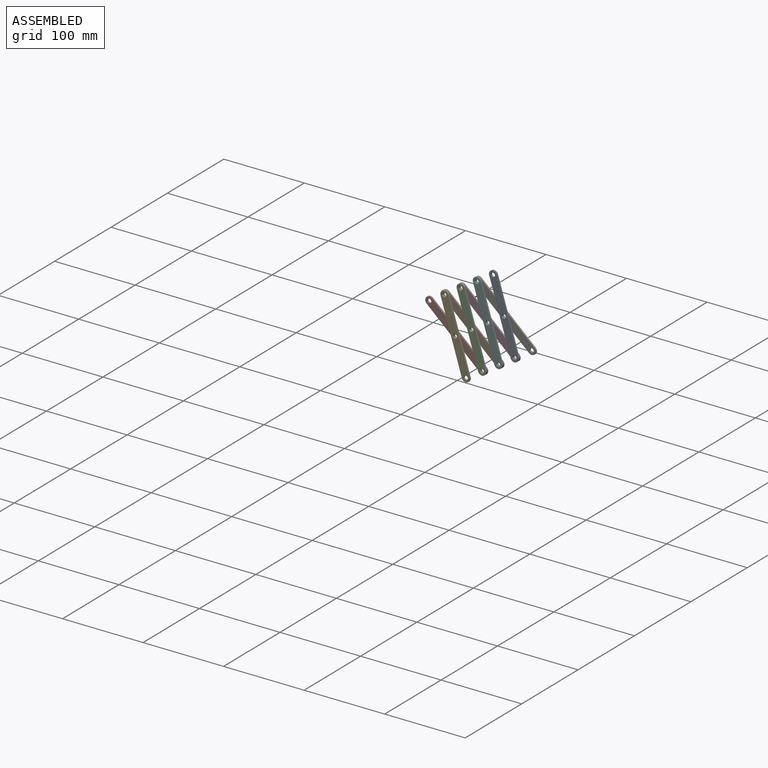
[diagram: assembled view]
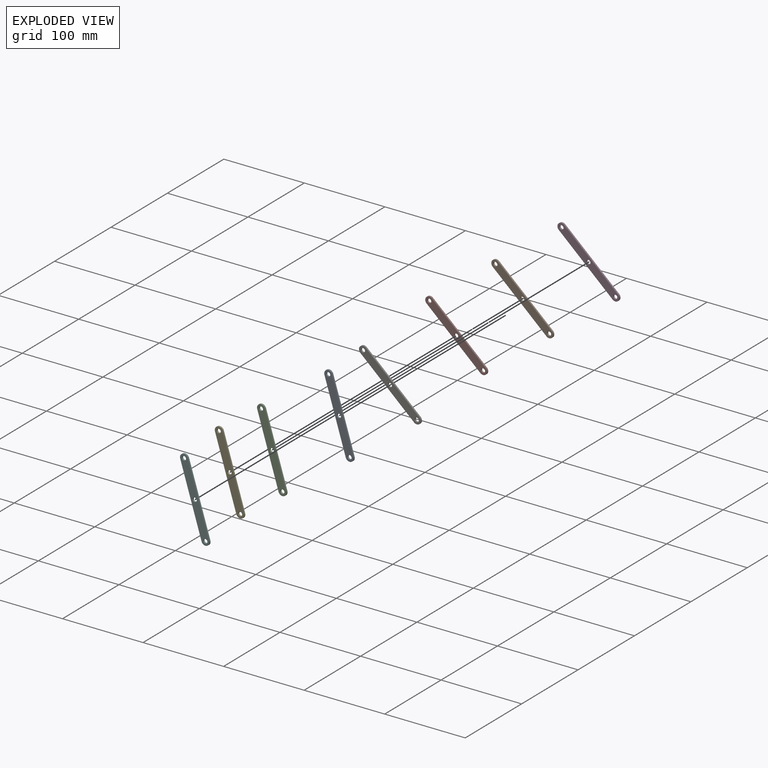
[diagram: exploded view]
GUIDED TOUR — MATED ASSEMBLY (Onshape document e46e62579672f2caefa31578, AutoMate assembly e46e62579672f2caefa31578_6e8f87098fdb6613fdceb971_dd7d72955696d17101075353_default)

This assembly has 8 components, labeled P0..P7 below (a component is one placed occurrence of a part; the same part can appear more than once), held together by 10 mates. A mate is a constraint between two components; its type names the relative motion it leaves free:
  REVOLUTE — leaves rotation about the listed axis free (a hinge).
Axis/direction vectors are unit vectors and 'through' points are millimeter coordinates, both in the assembly's world frame.

MATES
  1. REVOLUTE "Revolute 3": P7 <-> P2, axis (0.000, -1.000, 0.000) through (33.42, -2.00, -30.13) mm
  2. REVOLUTE "Revolute 5": P3 <-> P2, axis (0.000, -1.000, 0.000) through (6.88, -2.00, 55.86) mm
  3. REVOLUTE "Revolute 1": P4 <-> P7, axis (0.000, 1.000, 0.000) through (0.00, -2.00, 0.00) mm
  4. REVOLUTE "Revolute 4": P1 <-> P2, axis (0.000, -1.000, 0.000) through (20.15, -2.00, 12.87) mm
  5. REVOLUTE "Revolute 8": P6 <-> P5, axis (0.000, -1.000, 0.000) through (27.02, -2.00, 68.73) mm
  6. REVOLUTE "Revolute 2": P1 <-> P4, axis (0.000, -1.000, 0.000) through (-13.27, -2.00, 43.00) mm
  7. REVOLUTE "Revolute 7": P5 <-> P3, axis (0.000, 1.000, 0.000) through (40.30, -2.00, 25.73) mm
  8. REVOLUTE "Revolute 10": P0 <-> P6, axis (0.000, 1.000, 0.000) through (60.45, -2.00, 38.60) mm
  9. REVOLUTE "Revolute 6": P5 <-> P1, axis (0.000, 1.000, 0.000) through (53.57, -2.00, -17.27) mm
  10. REVOLUTE "Revolute 9": P0 <-> P3, axis (0.000, 1.000, 0.000) through (73.72, -2.00, -4.40) mm

ASSEMBLY ORDER
  1. P7 — the base component [order verified]
  2. P1 [order verified]
  3. P3 [order verified]
  4. P6 [order verified]
  5. P0 [order verified]
  6. P2 [order verified]
  7. P4 [order verified]
  8. P5 [order verified]
Order-tag legend:
  [order verified] — this step's position reverses a verified removal order: the component was checked to insert without passing through the ones already placed.

Of the 8 components, 8 carry the full construction recipe — the FeatureScript program that regenerates the part's solid from scratch; the rest are supplied as boundary geometry only.
Each toured component is shown spotlighted twice — in the assembled view, then in the exploded view, where a leader line traces a displaced component back to its assembled socket (saturated green if recipe-attached, orange if geometry-only; every other component desaturated gray) — followed by its recipe or geometry summary and the mates that hold it.
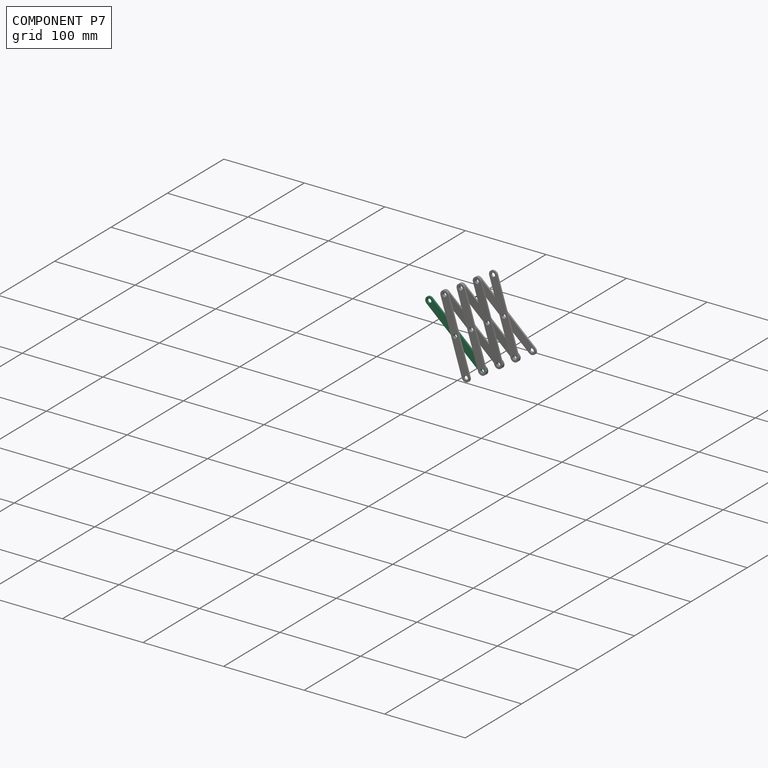
[diagram: component P7 — assembled]
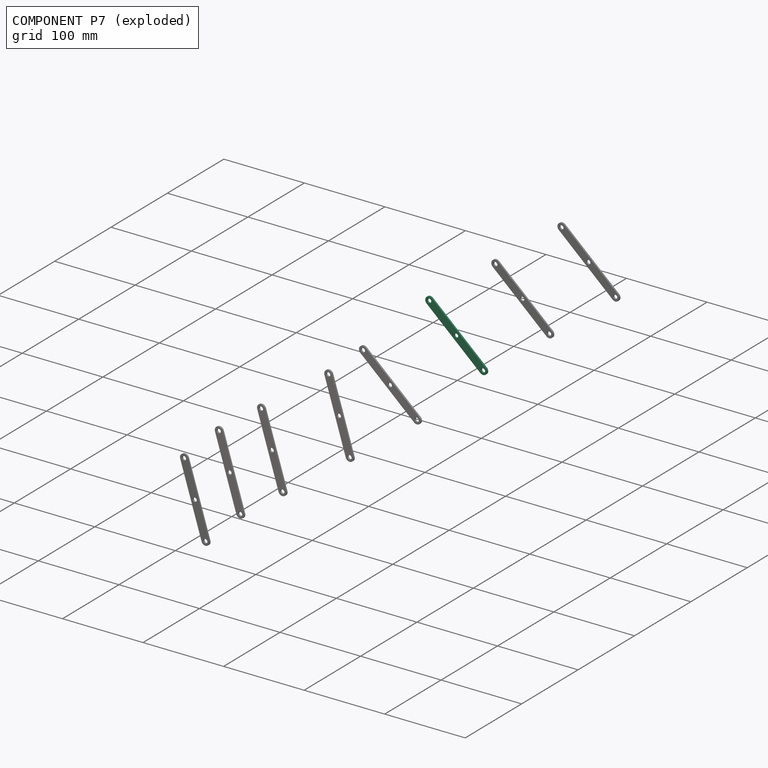
[diagram: component P7 — exploded]
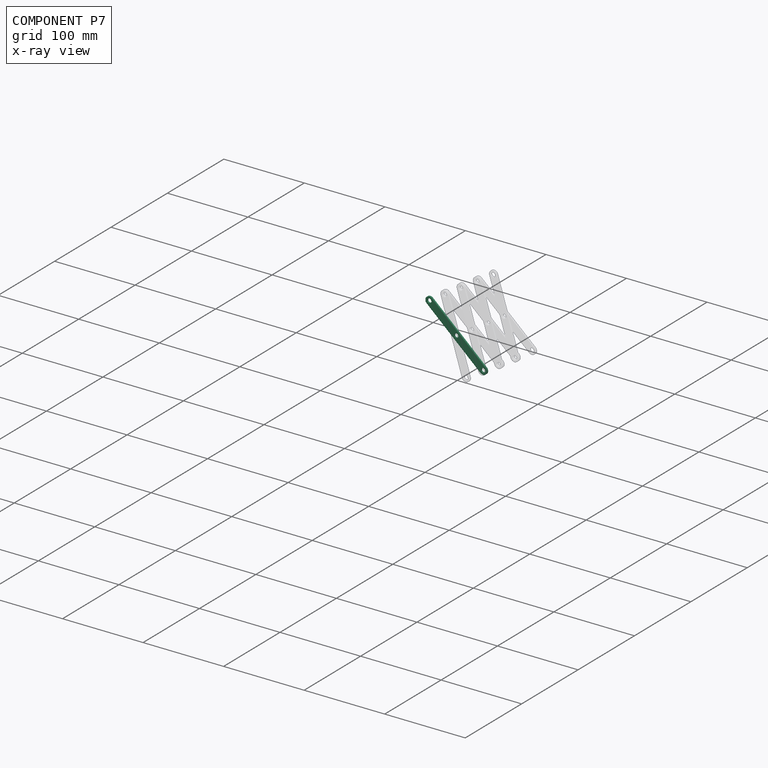
[diagram: component P7 — x-ray view]
COMPONENT P7 — same part as P0 (CADFS 00232060); its construction recipe is shown at P0.
Held by: REVOLUTE mate "Revolute 3" to P2; REVOLUTE mate "Revolute 1" to P4.
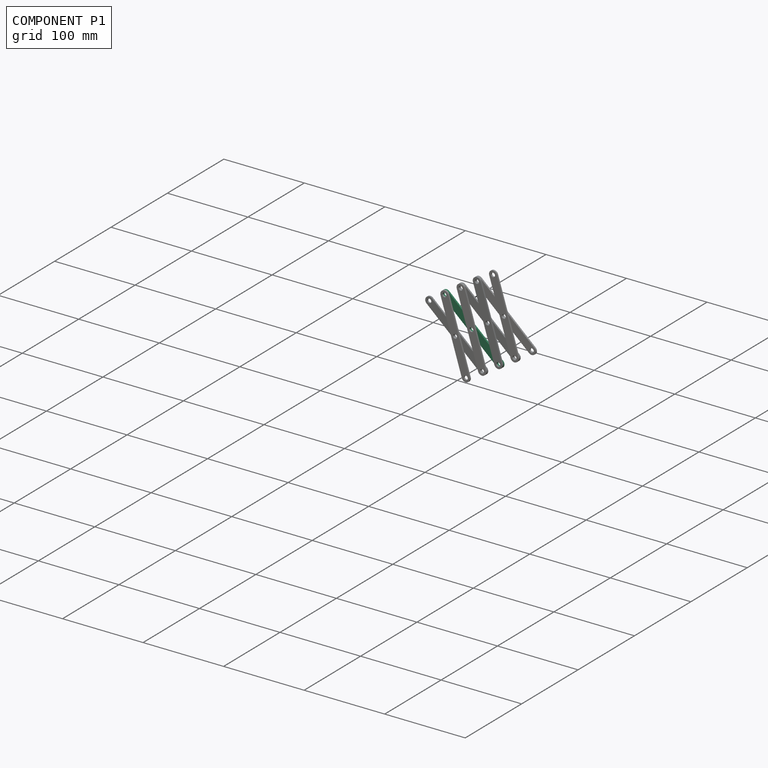
[diagram: component P1 — assembled]
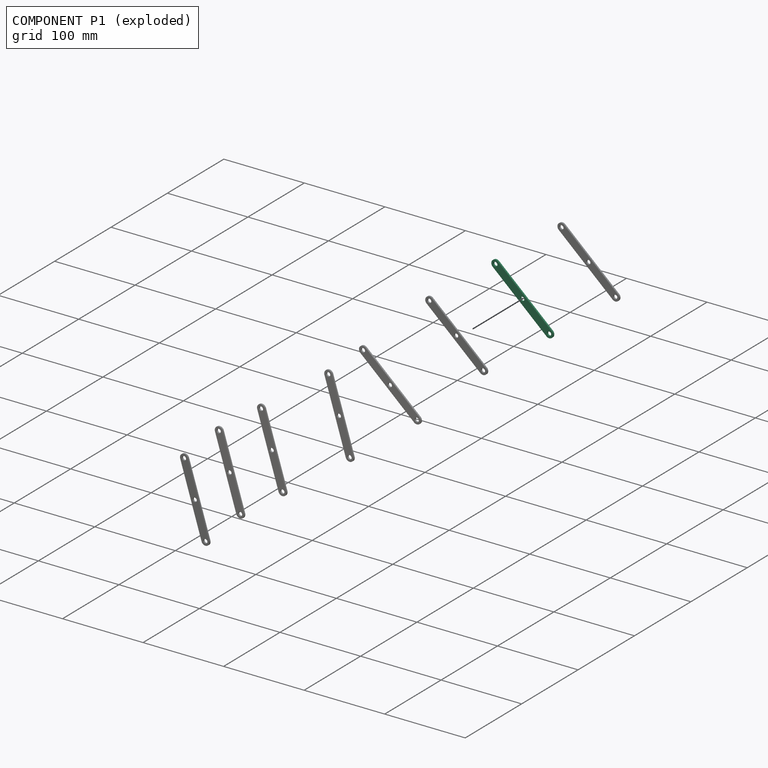
[diagram: component P1 — exploded]
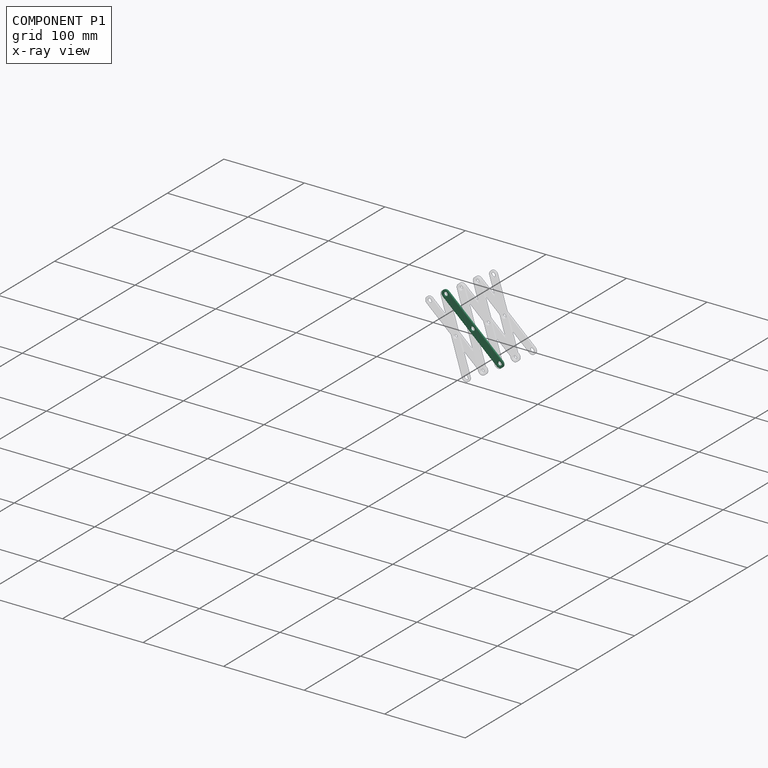
[diagram: component P1 — x-ray view]
COMPONENT P1 — same part as P0 (CADFS 00232060); its construction recipe is shown at P0.
Held by: REVOLUTE mate "Revolute 4" to P2; REVOLUTE mate "Revolute 2" to P4; REVOLUTE mate "Revolute 6" to P5.
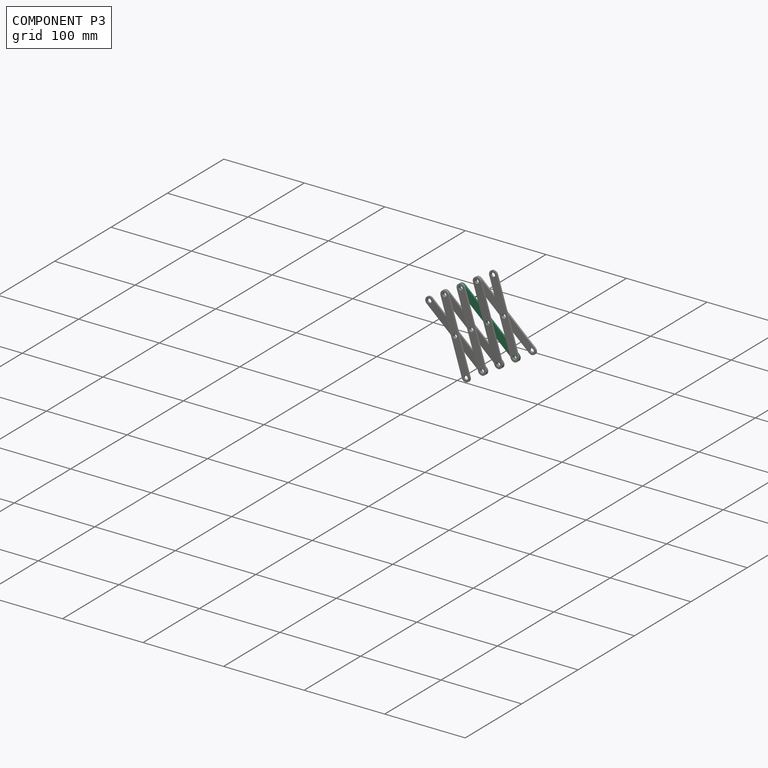
[diagram: component P3 — assembled]
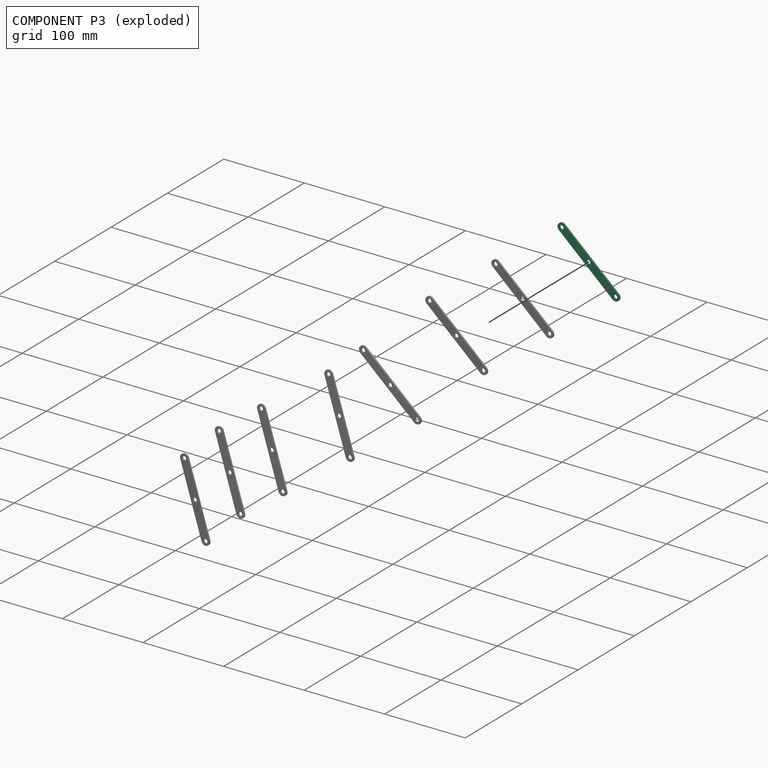
[diagram: component P3 — exploded]
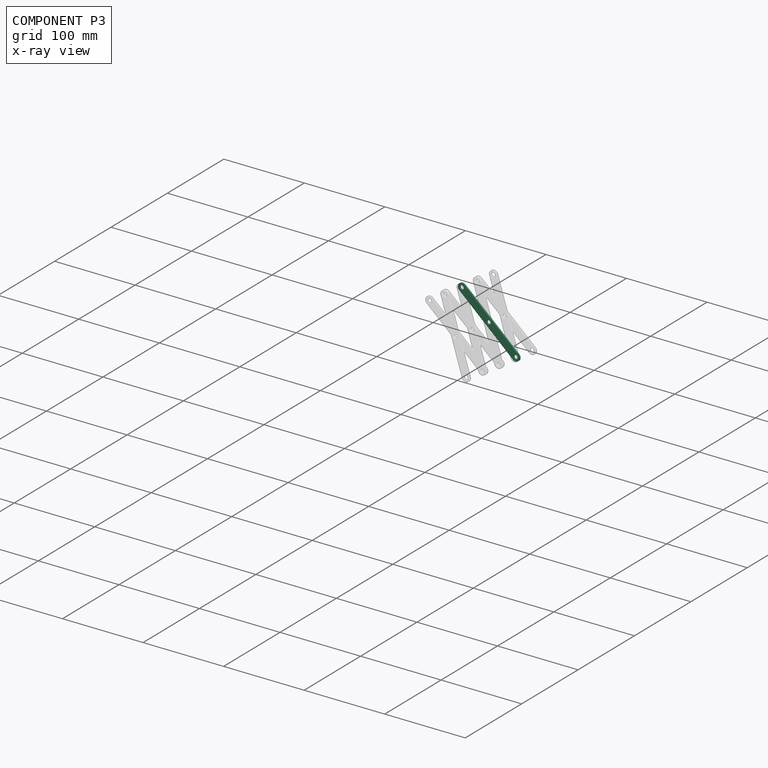
[diagram: component P3 — x-ray view]
COMPONENT P3 — same part as P0 (CADFS 00232060); its construction recipe is shown at P0.
Held by: REVOLUTE mate "Revolute 5" to P2; REVOLUTE mate "Revolute 7" to P5; REVOLUTE mate "Revolute 9" to P0.
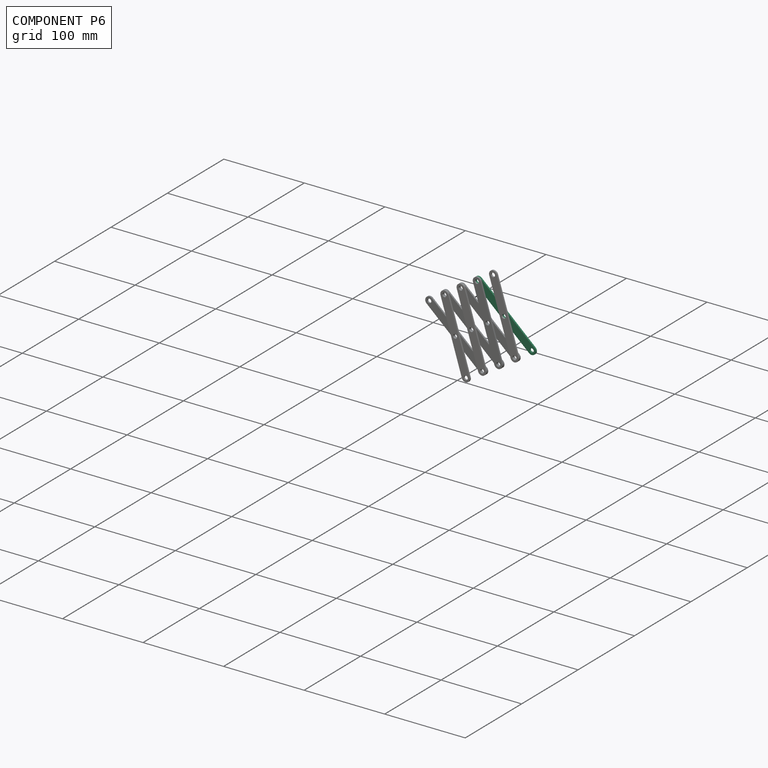
[diagram: component P6 — assembled]
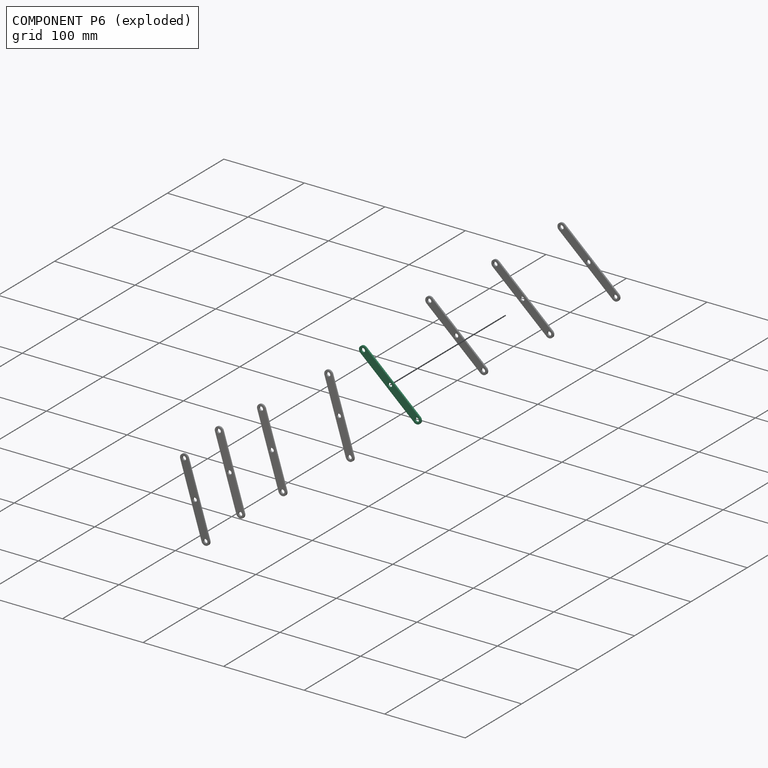
[diagram: component P6 — exploded]
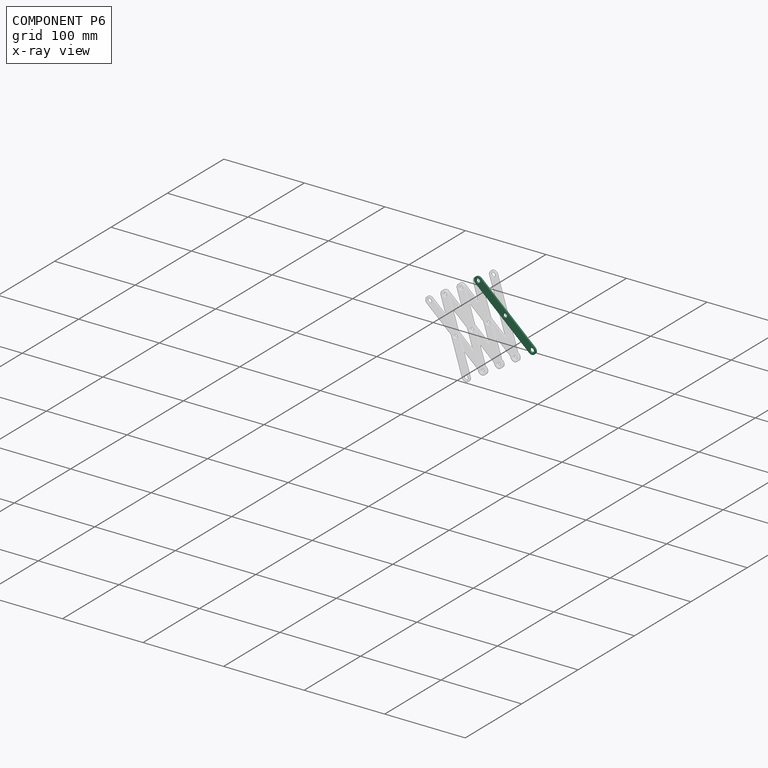
[diagram: component P6 — x-ray view]
COMPONENT P6 — same part as P0 (CADFS 00232060); its construction recipe is shown at P0.
Held by: REVOLUTE mate "Revolute 8" to P5; REVOLUTE mate "Revolute 10" to P0.
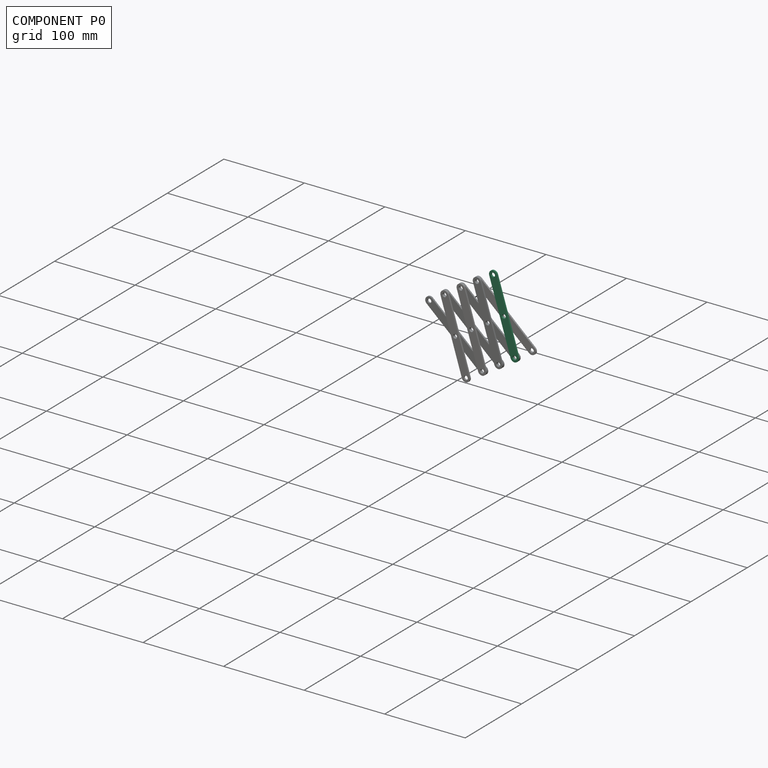
[diagram: component P0 — assembled]
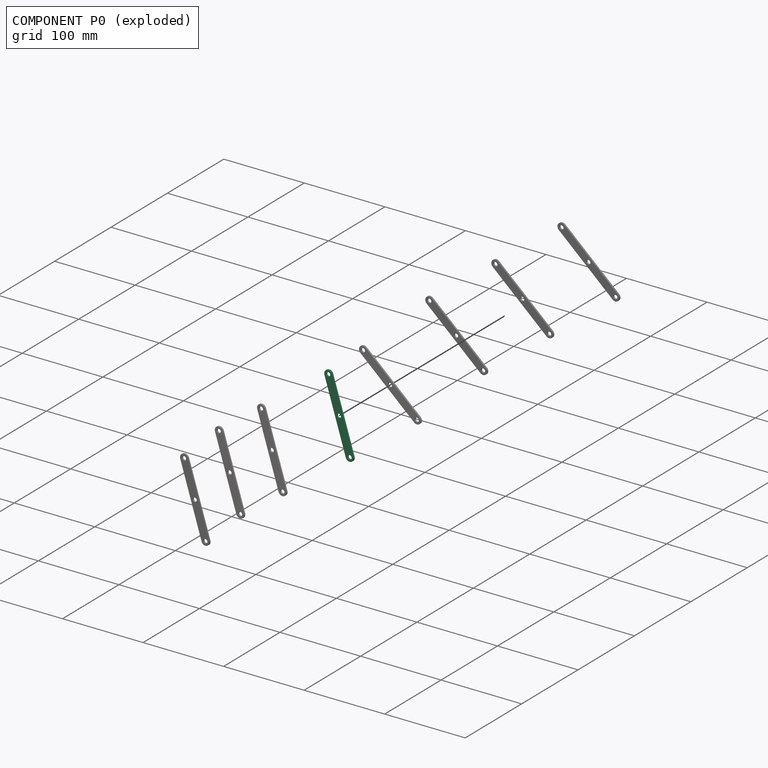
[diagram: component P0 — exploded]
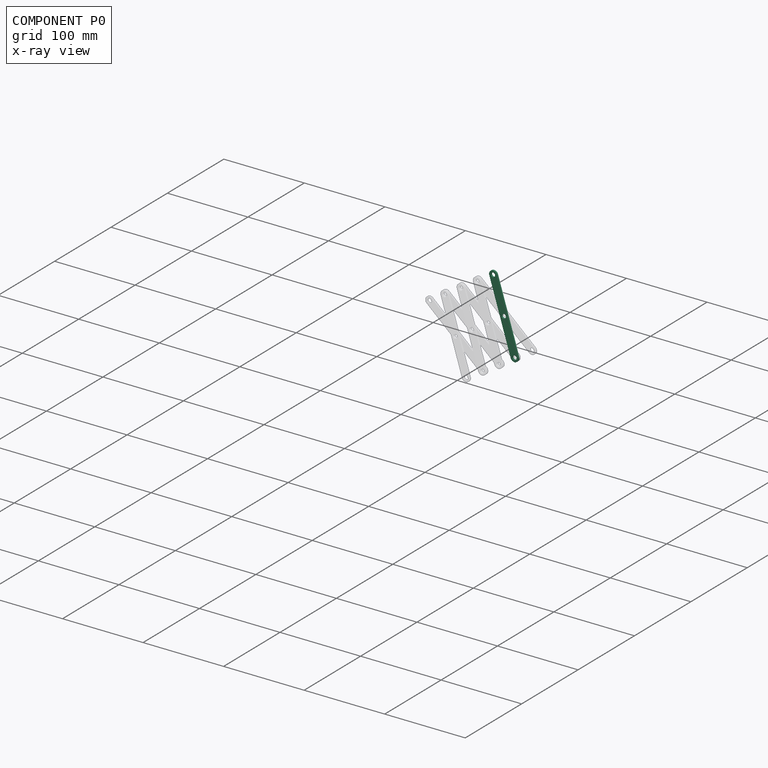
[diagram: component P0 — x-ray view]
COMPONENT P0 — recipe-attached (CADFS 00232060, mesh-verified: the recipe's output STEP matches this component's geometry to below the mesh-comparison resolution (tessellation chordal tolerance ~0.151 mm)).
Held by: REVOLUTE mate "Revolute 10" to P6; REVOLUTE mate "Revolute 9" to P3.
Construction recipe (FeatureScript — the CAD program that rebuilds this solid; sketch coordinates are in the units given by the * unit suffixes, e.g. mm):

FeatureScript 1511;
import(path : "onshape/std/geometry.fs", version : "1511.0");
import(path : "onshape/std/common.fs", version : "1511.0");
const mm = millimeter;
const VERTEX = EntityType.VERTEX;
const EDGE = EntityType.EDGE;
const FACE = EntityType.FACE;
const BODY = EntityType.BODY;
function v(x, y){return vector(x, y);}
function OD(order){return orderDisambiguation(order);}
function OSD(set){return originalSetDisambiguation(set);}
function TD(topology){return topologyDisambiguation(topology);}
function TDD(query){return trueDependencyDisambiguation(query);}
function sQuery(a, b, c) {return sketchEntityQuery(a, b, c);}

annotation { "Feature Type Name" : "Feature", "Feature Type Description" : "" }
export const myFeature = defineFeature(function(context is Context, id is Id, definition is map)
    precondition{}
    {
        {
            var Q0;
            Q0=qCreatedBy(makeId("Front.planeOp"),FACE);
            var sketch = newSketch(context, id + "F0", { "sketchPlane" : qUnion([Q0])});
            skLineSegment(sketch, "E0.bottom", {"start": v(-50, 5) * mm, "end": v(50, 5) * mm});
            skLineSegment(sketch, "E0.top", {"start": v(-50, -5) * mm, "end": v(50, -5) * mm});
            skLineSegment(sketch, "E0.left", {"start": v(-50, 5) * mm, "end": v(-50, -5) * mm});
            skLineSegment(sketch, "E0.right", {"start": v(50, 5) * mm, "end": v(50, -5) * mm});
            skCircle(sketch, "E1", {"center": v(0, 0) * mm, "radius": 2.5 * mm});
            skCircle(sketch, "E2", {"center": v(45, 0) * mm, "radius": 2.5 * mm});
            skPoint(sketch, "E2.centerSnap0", {"position": v(50, 0) * mm});
            skCircle(sketch, "E3", {"center": v(-45, 0) * mm, "radius": 2.5 * mm});
            skPoint(sketch, "E3.centerSnap0", {"position": v(-50, 0) * mm});
            skSolve(sketch);
        }
        {
            var Q0;
            Q0=makeQuery(id+"F0.imprint","IMPRINT",FACE,{"disambiguationData":[TD([[makeQuery(id+"F0.imprint","IMPRINT",EDGE,{"derivedFrom":sQuery(id+"F0.wireOp",EDGE,"E0.bottom")}),-1.0]])]});
            extrude(context, id + "F1", {"entities" : qUnion([Q0]), "depth" : 2 * mm});
        }
        {
            var Q0;
            Q0=makeQuery(id+"F1.opExtrude","SWEPT_EDGE",EDGE,{"disambiguationData":[OSD([sQuery(id+"F0.wireOp",EDGE,"E0.bottom"),sQuery(id+"F0.wireOp",EDGE,"E0.left")])]});
            var Q1;
            Q1=makeQuery(id+"F1.opExtrude","SWEPT_EDGE",EDGE,{"disambiguationData":[OSD([sQuery(id+"F0.wireOp",EDGE,"E0.top"),sQuery(id+"F0.wireOp",EDGE,"E0.left")])]});
            var Q2;
            Q2=makeQuery(id+"F1.opExtrude","SWEPT_EDGE",EDGE,{"disambiguationData":[OSD([sQuery(id+"F0.wireOp",EDGE,"E0.top"),sQuery(id+"F0.wireOp",EDGE,"E0.right")])]});
            var Q3;
            Q3=makeQuery(id+"F1.opExtrude","SWEPT_EDGE",EDGE,{"disambiguationData":[OSD([sQuery(id+"F0.wireOp",EDGE,"E0.bottom"),sQuery(id+"F0.wireOp",EDGE,"E0.right")])]});
            fillet(context, id + "F2", {"entities" : qUnion([Q0, Q1, Q2, Q3]), "radius" : 5 * mm, "tangentPropagation" : true, "allowEdgeOverflow" : false});
        }
        {
            var Q0;
            Q0=makeQuery(id+"F1.opExtrude","SWEPT_BODY",BODY,{"disambiguationData":[OSD([sQuery(id+"F0.wireOp",EDGE,"E0.bottom"),sQuery(id+"F0.wireOp",EDGE,"E0.top"),sQuery(id+"F0.wireOp",EDGE,"E0.left"),sQuery(id+"F0.wireOp",EDGE,"E0.right"),sQuery(id+"F0.wireOp",EDGE,"E1"),sQuery(id+"F0.wireOp",EDGE,"E2"),sQuery(id+"F0.wireOp",EDGE,"E3")])]});
            transform(context, id + "F3", {"entities" : qUnion([Q0]), "transformType" : TransformType.TRANSLATION_3D, "dx" : 0 * mm, "dy" : -2 * mm, "dz" : 0 * mm, "makeCopy" : true});
        }
        {
            var Q0;
            Q0=makeQuery(id+"F3.opPattern","COPY",BODY,{"derivedFrom":makeQuery(id+"F1.opExtrude","SWEPT_BODY",BODY,{"disambiguationData":[OSD([sQuery(id+"F0.wireOp",EDGE,"E0.bottom"),sQuery(id+"F0.wireOp",EDGE,"E0.top"),sQuery(id+"F0.wireOp",EDGE,"E0.left"),sQuery(id+"F0.wireOp",EDGE,"E0.right"),sQuery(id+"F0.wireOp",EDGE,"E1"),sQuery(id+"F0.wireOp",EDGE,"E2"),sQuery(id+"F0.wireOp",EDGE,"E3")])]}),"instanceName":"1"});
            deleteBodies(context, id + "F4", {"entities" : qUnion([Q0])});
        }
    });
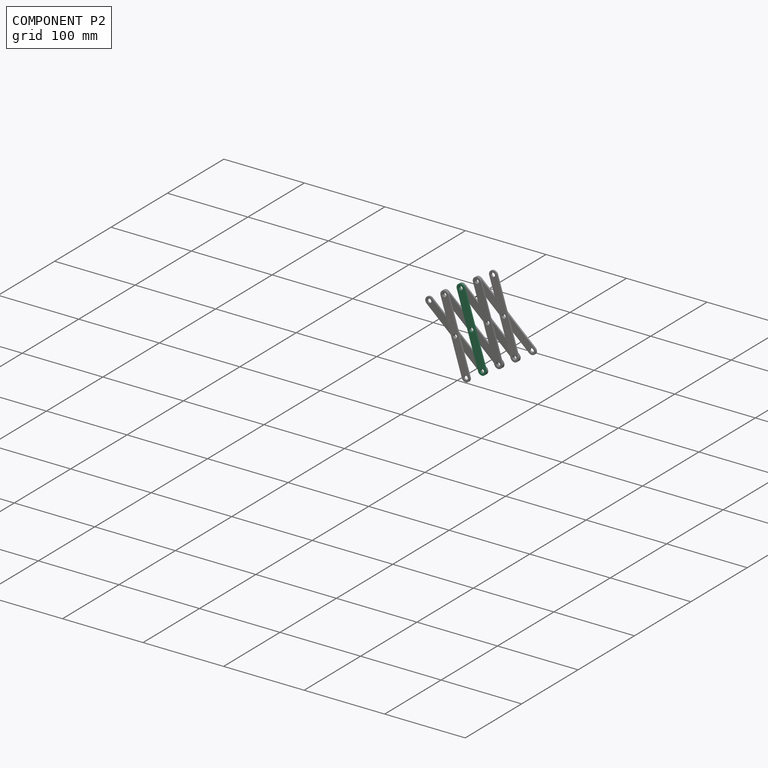
[diagram: component P2 — assembled]
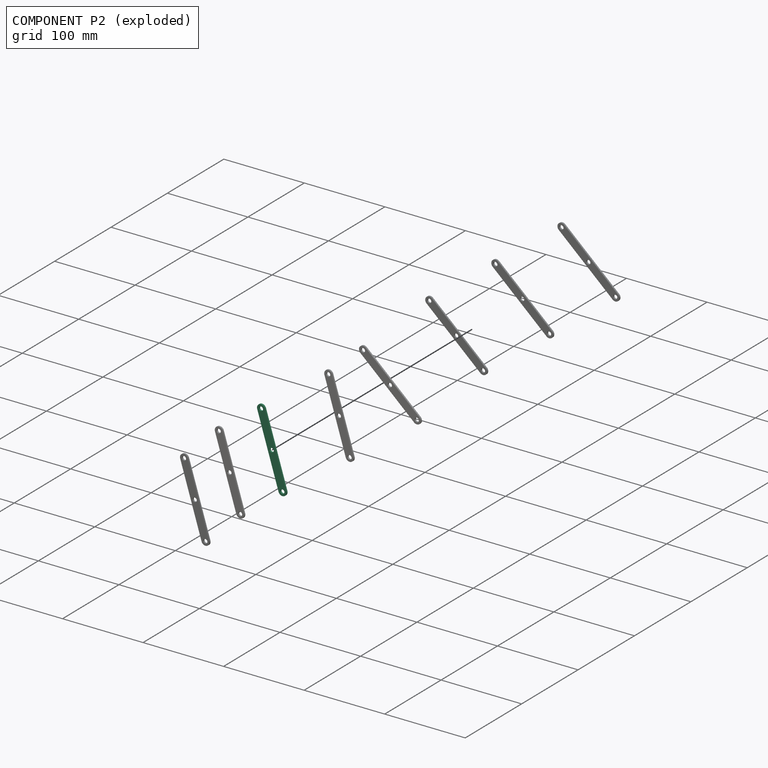
[diagram: component P2 — exploded]
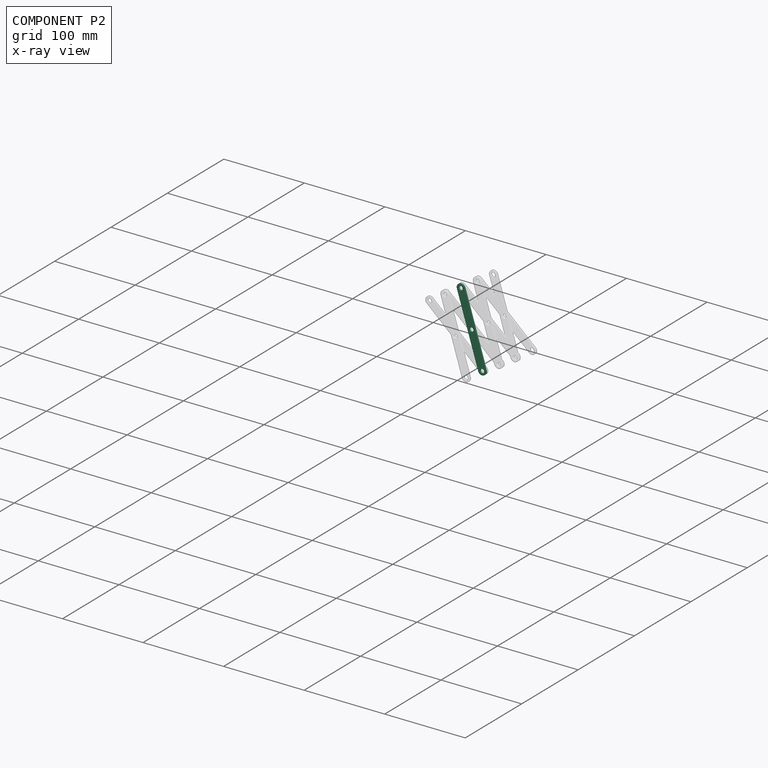
[diagram: component P2 — x-ray view]
COMPONENT P2 — same part as P0 (CADFS 00232060); its construction recipe is shown at P0.
Held by: REVOLUTE mate "Revolute 3" to P7; REVOLUTE mate "Revolute 5" to P3; REVOLUTE mate "Revolute 4" to P1.
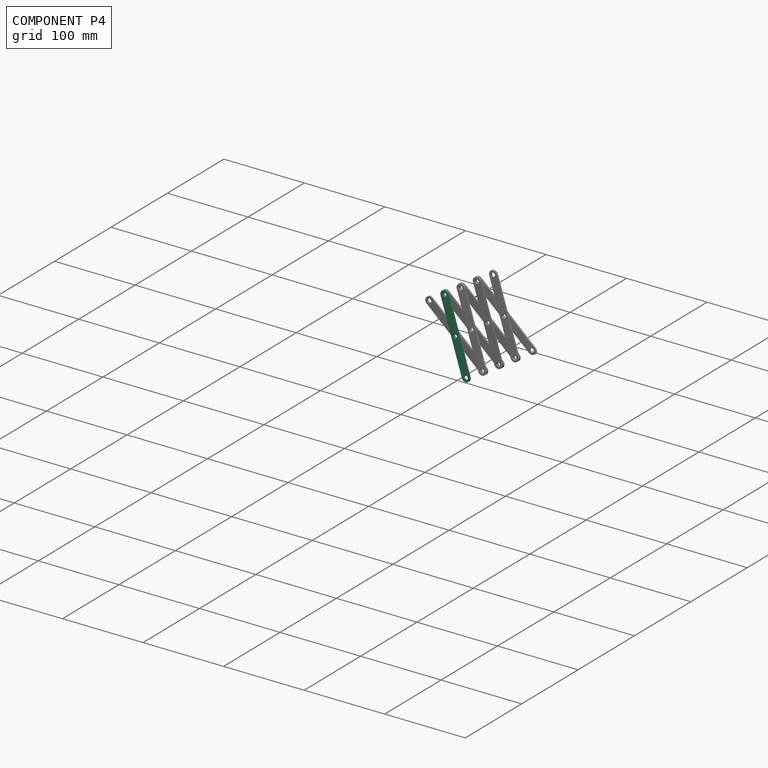
[diagram: component P4 — assembled]
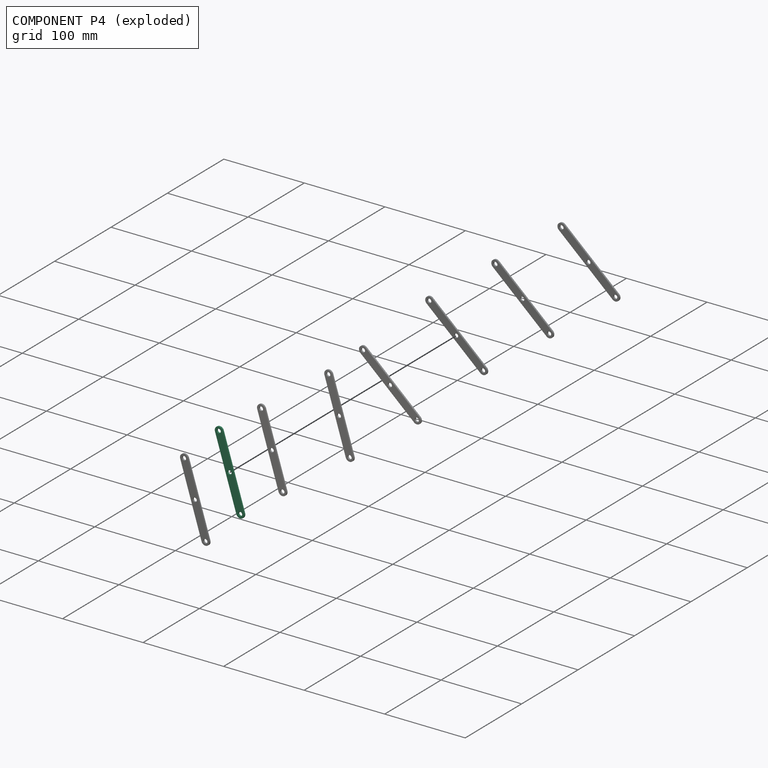
[diagram: component P4 — exploded]
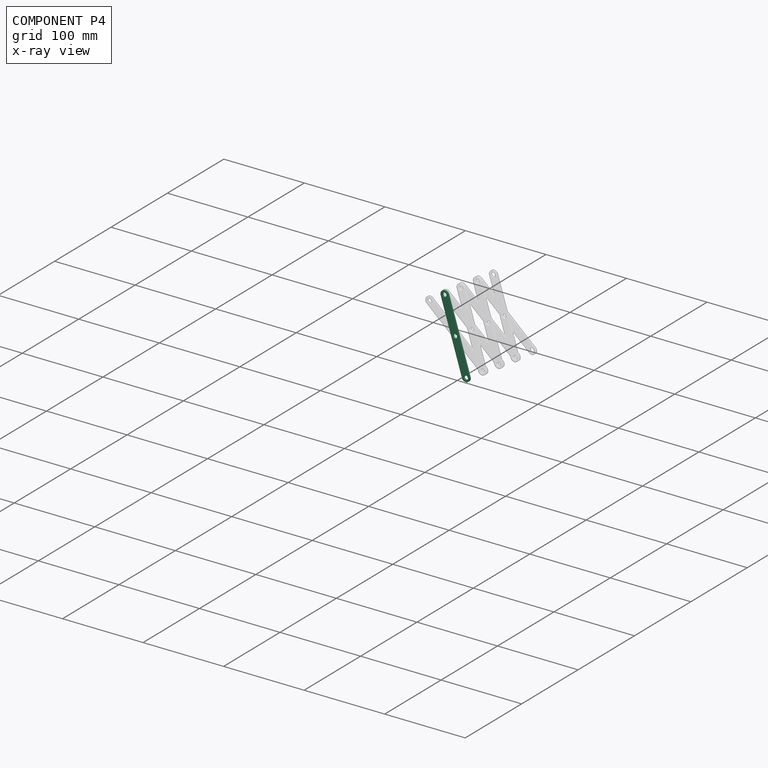
[diagram: component P4 — x-ray view]
COMPONENT P4 — same part as P0 (CADFS 00232060); its construction recipe is shown at P0.
Held by: REVOLUTE mate "Revolute 1" to P7; REVOLUTE mate "Revolute 2" to P1.
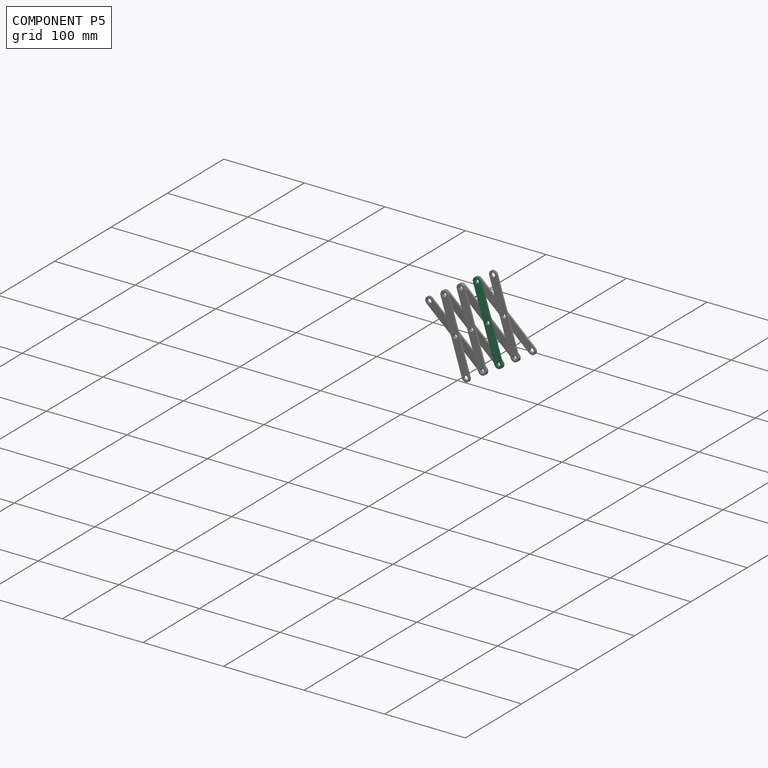
[diagram: component P5 — assembled]
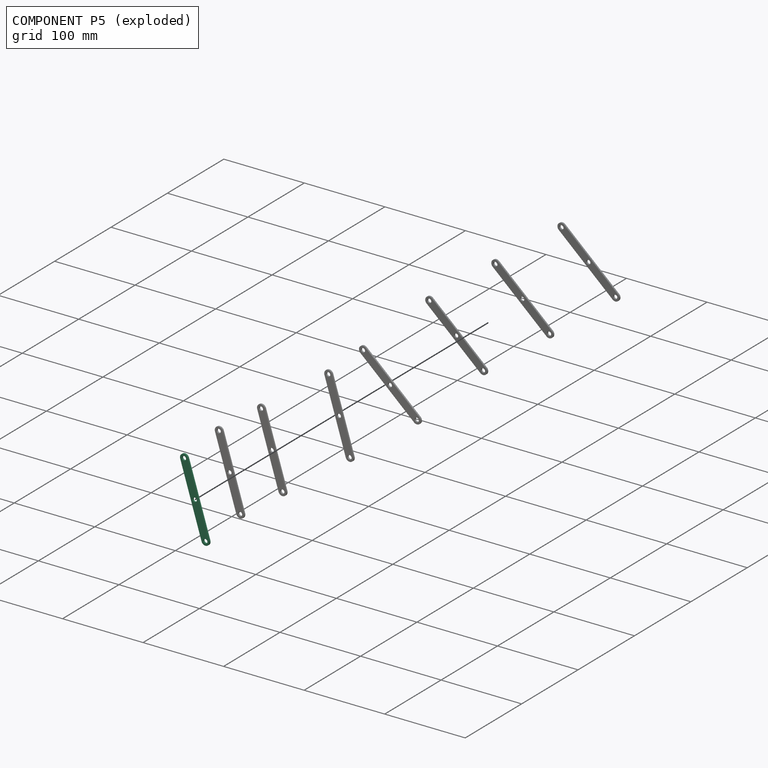
[diagram: component P5 — exploded]
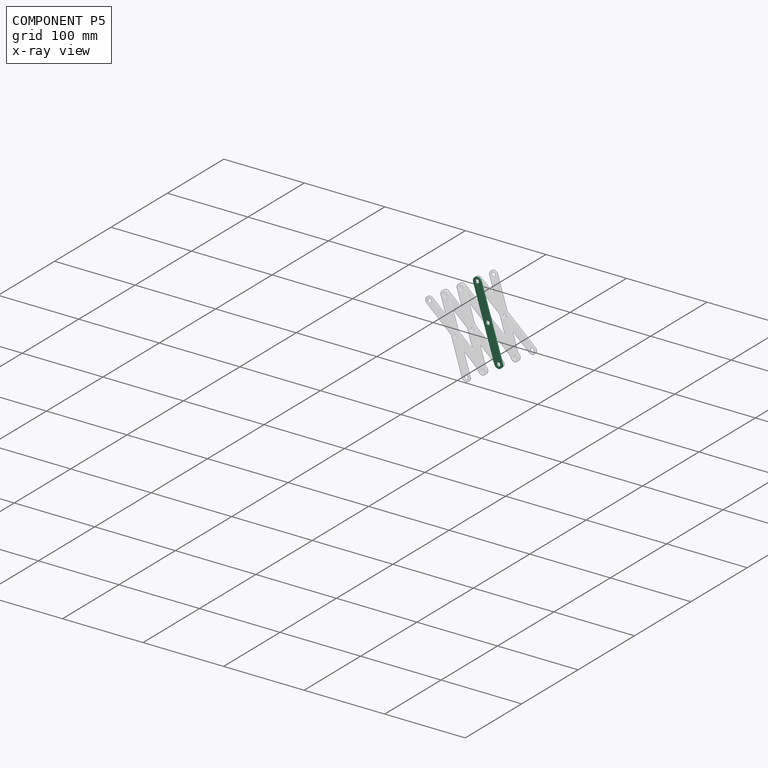
[diagram: component P5 — x-ray view]
COMPONENT P5 — same part as P0 (CADFS 00232060); its construction recipe is shown at P0.
Held by: REVOLUTE mate "Revolute 8" to P6; REVOLUTE mate "Revolute 7" to P3; REVOLUTE mate "Revolute 6" to P1.
PROVENANCE & LICENSES
Assembly (occurrences, transforms, mates, per-part STEP geometry): AutoMate dataset, Zenodo record 7776208, CC0.
Construction recipes: CADFS (HuggingFace VladPyatov/CADFS, CC-BY-4.0, layered over the ABC dataset), FeatureScript reconstruction programs keyed by ABC model id.
Join: ABC meta listings map ABC model id -> Onshape documentId; within a shared document, parts are matched by geometric signature (bounding-box dims + volume at 0.1% relative tolerance, exact B-rep face/solid counts).
Verification: 8 of this assembly's 8 components carry a recipe attachment, and every attachment is mesh-verified: the CADFS STEP and the AutoMate member STEP were compared as meshes in their shared local frame (symmetric sampled-point-to-mesh distance); worst across the 8 attachments: below the mesh-comparison resolution (tessellation chordal tolerance ~0.151 mm) on a 100 mm part.
Renders: orthographic iso camera (az 35 / el 25); the floor grid conveys scale (grid pitch printed in each image; no ruler). In the exploded view each component is displaced by its stored offset vector: the offsets alone carry the explosion direction (mate normal/axis signs are not orientation cues and do not encode it), and separation distances are assigned per mate-chain, not proportionally to assembly-order depth.
